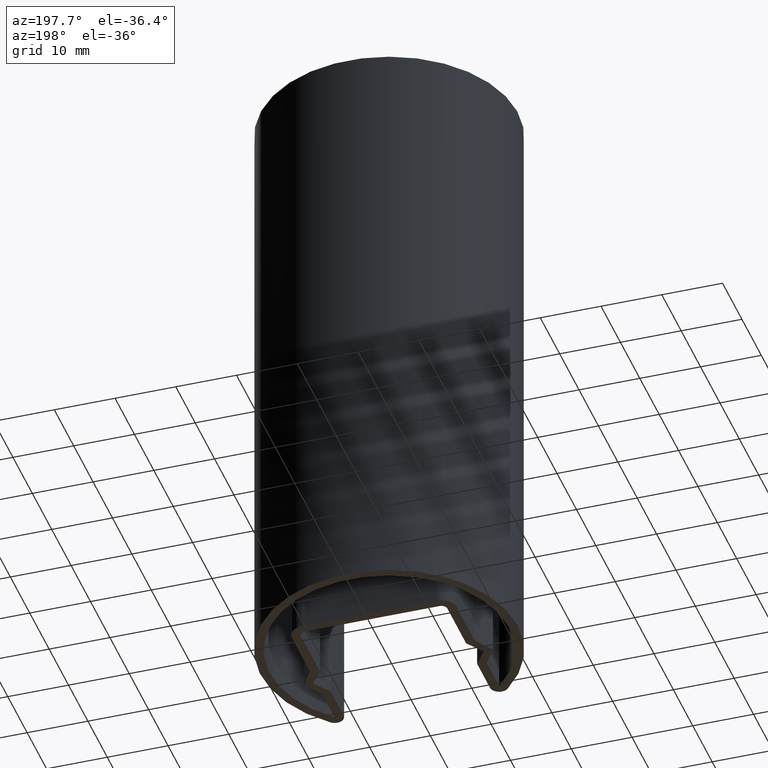
[diagram: clean part render]
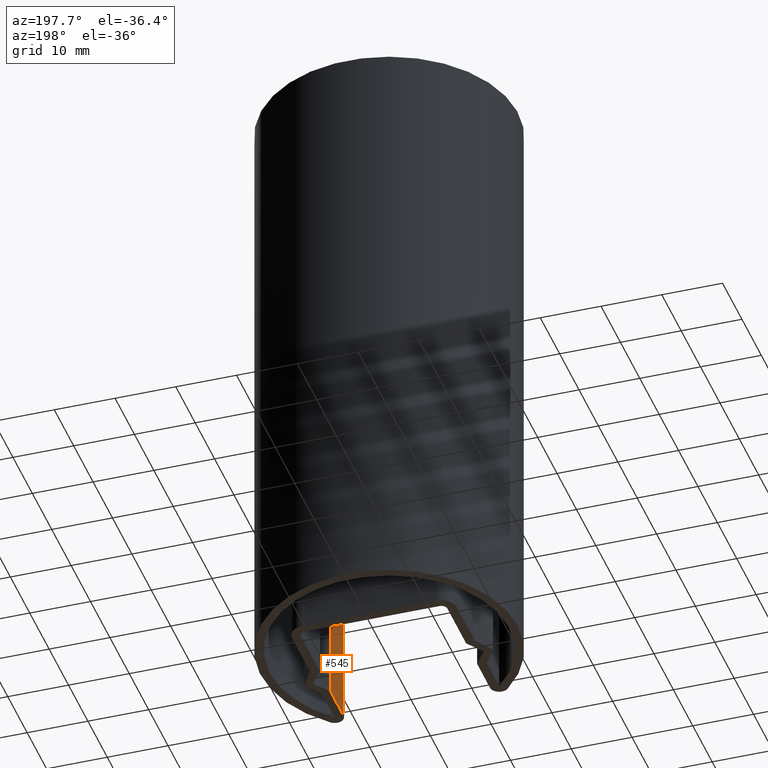
[diagram: same view with one face highlighted and labeled with its STEP entity id]
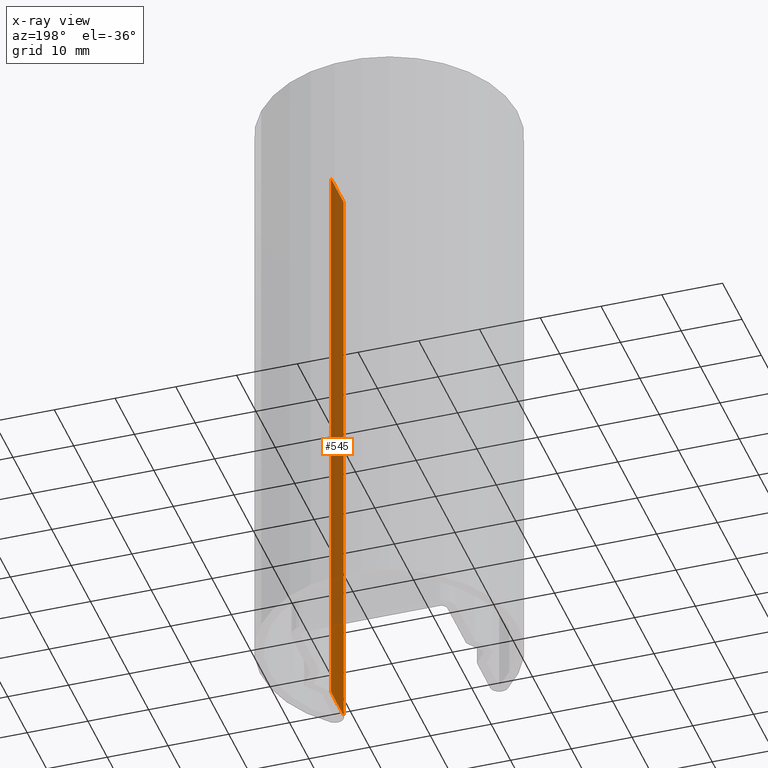
[diagram: x-ray of the same camera — body ghosted, the highlighted face saturated]
A machine part, auxiliary view. The second image highlights one B-rep face of the part: STEP entity #545.
The next image is the same camera in x-ray: the body ghosted, the highlighted face saturated — about 85% of this face is hidden behind the body in this view.
In plain terms, the highlighted planar face has unit normal (1, 0, 0).
Its self-contained STEP definition (entity closure, byte-faithful):
#28=PLANE('',#592);
#66=LINE('',#838,#128);
#68=LINE('',#842,#130);
#69=LINE('',#844,#131);
#70=LINE('',#846,#132);
#128=VECTOR('',#681,1000.);
#130=VECTOR('',#685,1000.);
#131=VECTOR('',#686,1000.);
#132=VECTOR('',#687,1000.);
#208=ORIENTED_EDGE('',*,*,#354,.T.);
#209=ORIENTED_EDGE('',*,*,#355,.F.);
#210=ORIENTED_EDGE('',*,*,#356,.F.);
#211=ORIENTED_EDGE('',*,*,#352,.T.);
#352=EDGE_CURVE('',#421,#420,#66,.T.);
#354=EDGE_CURVE('',#420,#422,#68,.T.);
#355=EDGE_CURVE('',#423,#422,#69,.T.);
#356=EDGE_CURVE('',#421,#423,#70,.T.);
#420=VERTEX_POINT('',#837);
#421=VERTEX_POINT('',#839);
#422=VERTEX_POINT('',#843);
#423=VERTEX_POINT('',#845);
#477=EDGE_LOOP('',(#208,#209,#210,#211));
#507=FACE_BOUND('',#477,.T.);
#545=ADVANCED_FACE('',(#507),#28,.F.);
#592=AXIS2_PLACEMENT_3D('',#841,#683,#684);
#681=DIRECTION('',(0.,0.,-1.));
#683=DIRECTION('',(1.,5.20034333256328E-16,0.));
#684=DIRECTION('',(-5.20034333256328E-16,1.,0.));
#685=DIRECTION('',(5.20034333256328E-16,-1.,0.));
#686=DIRECTION('',(0.,0.,-1.));
#687=DIRECTION('',(5.20034333256328E-16,-1.,0.));
#837=CARTESIAN_POINT('',(12.0500000000004,-16.3284271247462,-50.));
#838=CARTESIAN_POINT('',(12.0500000000004,-16.3284271247462,50.));
#839=CARTESIAN_POINT('',(12.0500000000004,-16.3284271247462,50.));
#841=CARTESIAN_POINT('',(12.0500000000004,-16.3284271247462,50.));
#842=CARTESIAN_POINT('',(12.0500000000004,-16.3284271247462,-50.));
#843=CARTESIAN_POINT('',(12.0500000000004,-23.,-50.));
#844=CARTESIAN_POINT('',(12.0500000000004,-23.,50.));
#845=CARTESIAN_POINT('',(12.0500000000004,-23.,50.));
#846=CARTESIAN_POINT('',(12.0500000000004,-16.3284271247462,50.));